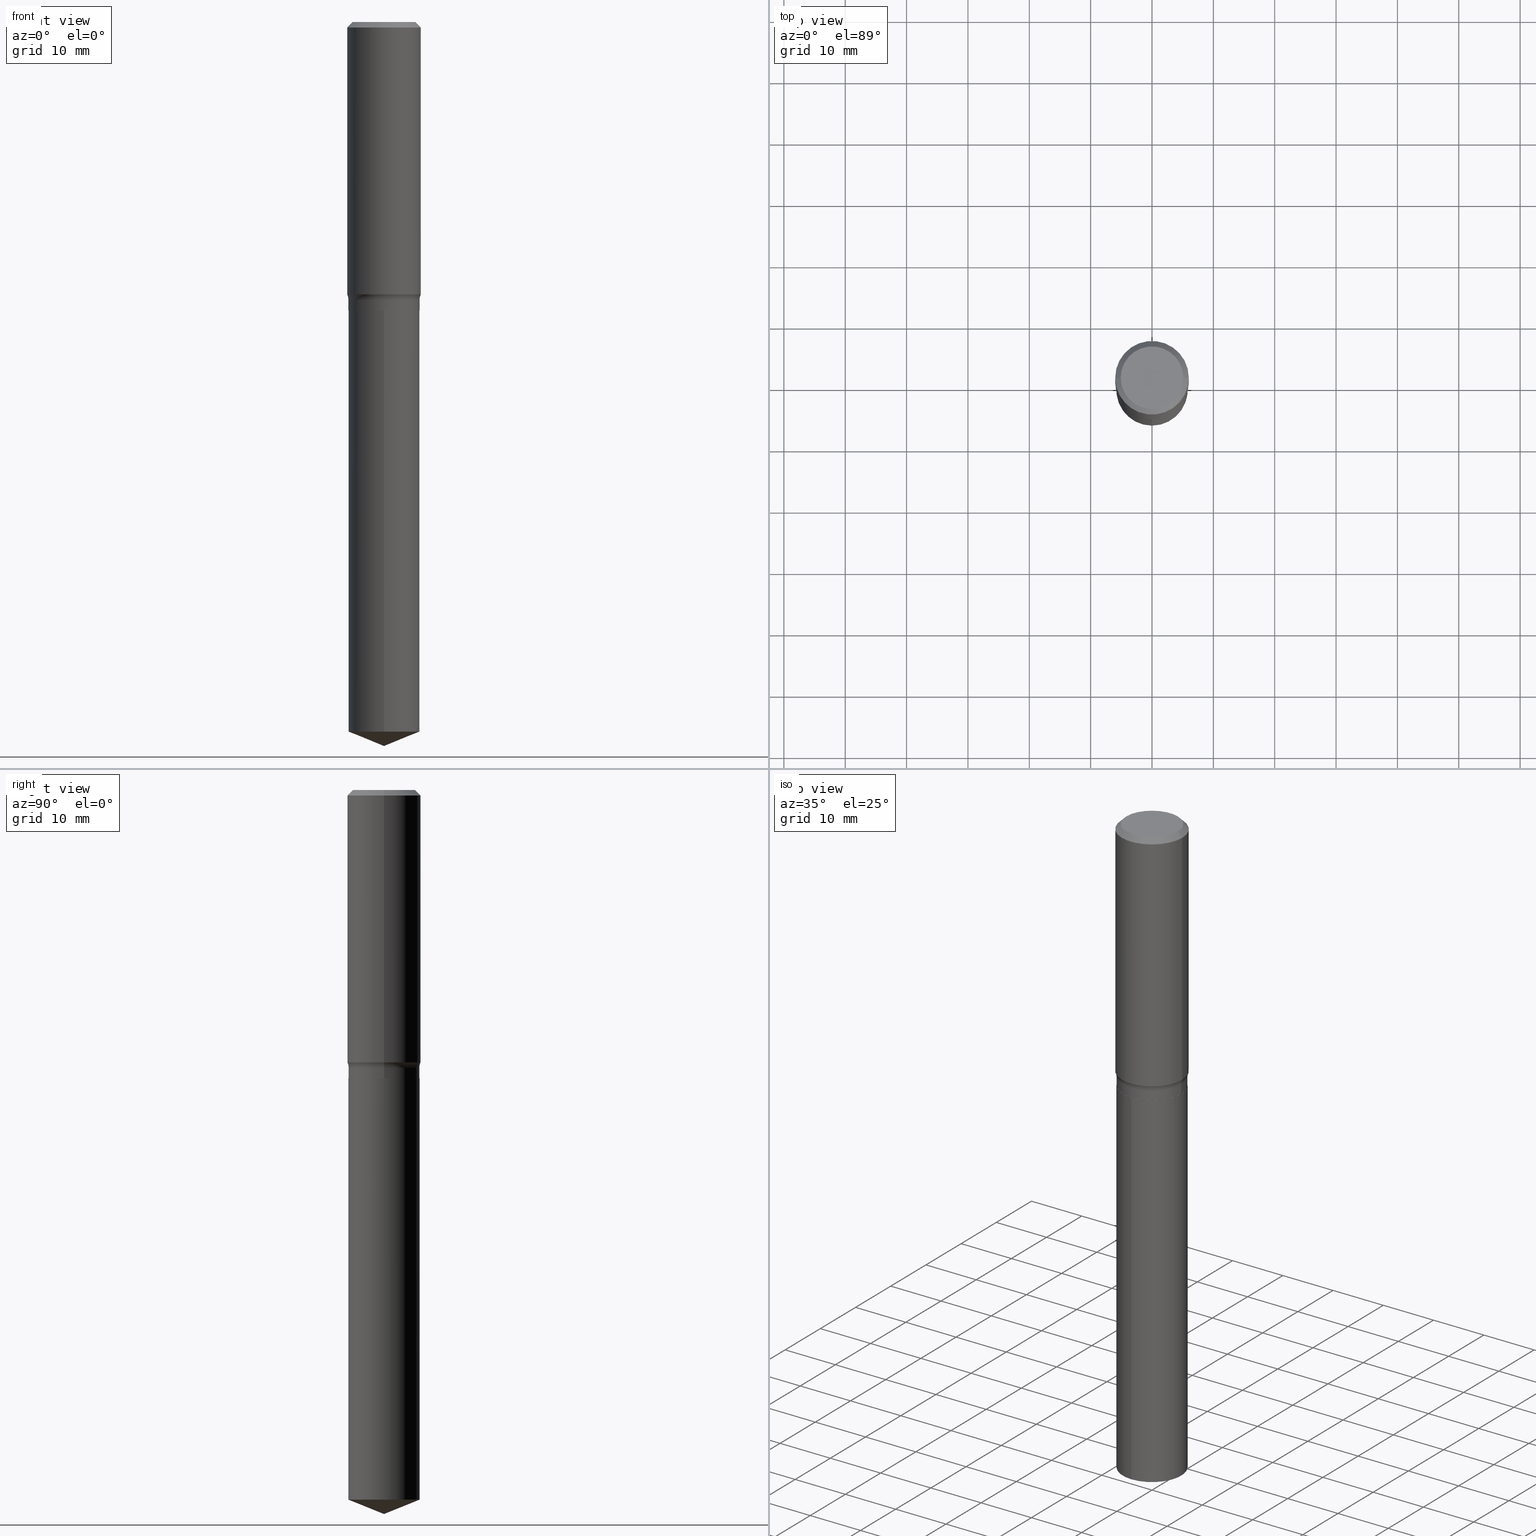
[diagram: canonical four-view strip — front | top / right | iso, engineering-drawing reading convention]
A machine part, canonical four-view strip (front | top / right | iso — engineering-drawing reading convention). The complete STEP part file that produces these views, byte-faithful:
ISO-10303-21;
HEADER;
FILE_DESCRIPTION (( 'STEP AP203' ),
    '1' );
FILE_NAME ('69309.STEP',
    '2024-04-19T17:47:00',
    ( '' ),
    ( '' ),
    'SwSTEP 2.0',
    'SolidWorks 2023',
    '' );
FILE_SCHEMA (( 'CONFIG_CONTROL_DESIGN' ));
ENDSEC;

DATA;
#1 = ORIENTED_EDGE ( 'NONE', *, *, #40, .T. ) ;
#2 = APPROVAL_ROLE ( '' ) ;
#3 = FACE_OUTER_BOUND ( 'NONE', #207, .T. ) ;
#4 = CARTESIAN_POINT ( 'NONE',  ( 4.525829119606832626E-29, -6.461684513797009689E-15, -1.850700000000000012 ) ) ;
#5 = EDGE_CURVE ( 'NONE', #185, #25, #203, .T. ) ;
#6 = CARTESIAN_POINT ( 'NONE',  ( -0.3063500000000000112, -4.045770371085188813E-15, -1.782200000000000450 ) ) ;
#7 = AXIS2_PLACEMENT_3D ( 'NONE', #463, #416, #264 ) ;
#8 = CARTESIAN_POINT ( 'NONE',  ( -5.008488096090115757E-47, 7.150793614331959538E-33, 2.048068690724057264E-18 ) ) ;
#9 = ADVANCED_FACE ( 'NONE', ( #237 ), #234, .T. ) ;
#10 = FACE_OUTER_BOUND ( 'NONE', #280, .T. ) ;
#11 = DIRECTION ( 'NONE',  ( -2.445463332132347352E-29, 3.491489177998303329E-15, 1.000000000000000000 ) ) ;
#12 = DIRECTION ( 'NONE',  ( -1.000000000000000000, 6.982962677686266711E-15, 0.000000000000000000 ) ) ;
#13 = CARTESIAN_POINT ( 'NONE',  ( -0.2361999999999999933, 1.525672600634282748E-15, -0.03543000000000021826 ) ) ;
#14 = CARTESIAN_POINT ( 'NONE',  ( 1.136164308041671340E-28, -1.622142970513121582E-14, -4.645999999999999908 ) ) ;
#15 = DIRECTION ( 'NONE',  ( -6.982962677686265922E-15, -1.000000000000000000, 2.392684907960817401E-15 ) ) ;
#16 = AXIS2_PLACEMENT_3D ( 'NONE', #425, #385, #225 ) ;
#17 = ORIENTED_EDGE ( 'NONE', *, *, #345, .F. ) ;
#18 = CARTESIAN_POINT ( 'NONE',  ( 0.000000000000000000, 0.000000000000000000, 0.000000000000000000 ) ) ;
#19 = DIRECTION ( 'NONE',  ( -6.982962677686265922E-15, -1.000000000000000000, 2.392684907960817401E-15 ) ) ;
#20 = ORIENTED_EDGE ( 'NONE', *, *, #69, .F. ) ;
#21 = VECTOR ( 'NONE', #323, 39.37007874015748143 ) ;
#22 = DIRECTION ( 'NONE',  ( 1.000000000000000000, -6.982962677686264344E-15, 0.000000000000000000 ) ) ;
#23 = AXIS2_PLACEMENT_3D ( 'NONE', #8, #120, #36 ) ;
#24 = EDGE_CURVE ( 'NONE', #392, #45, #399, .T. ) ;
#25 = VERTEX_POINT ( 'NONE', #202 ) ;
#26 = PERSON_AND_ORGANIZATION_ROLE ( 'design_owner' ) ;
#27 = EDGE_LOOP ( 'NONE', ( #82, #395, #220, #324 ) ) ;
#28 = CC_DESIGN_DATE_AND_TIME_ASSIGNMENT ( #101, #295, ( #124 ) ) ;
#29 = MECHANICAL_CONTEXT ( 'NONE', #156, 'mechanical' ) ;
#30 = DIRECTION ( 'NONE',  ( -0.7071067811866199593, 7.493145998870616062E-15, 0.7071067811864750752 ) ) ;
#31 = EDGE_LOOP ( 'NONE', ( #364, #403, #134, #34 ) ) ;
#32 = DATE_TIME_ROLE ( 'classification_date' ) ;
#33 = CARTESIAN_POINT ( 'NONE',  ( 8.664295980313993487E-31, -1.237031838352134079E-16, -0.03543000000000021826 ) ) ;
#34 = ORIENTED_EDGE ( 'NONE', *, *, #219, .F. ) ;
#35 = TOROIDAL_SURFACE ( 'NONE', #190, 0.3063500000000000112, 0.07799999999999999989 ) ;
#36 = DIRECTION ( 'NONE',  ( -1.000000000000000000, 6.982962677686265922E-15, -4.876176775795935793E-29 ) ) ;
#37 = APPROVAL ( #291, 'UNSPECIFIED' ) ;
#38 = DIRECTION ( 'NONE',  ( 7.105427357601001859E-15, 1.000000000000000000, -3.491481338843145583E-15 ) ) ;
#39 = DIRECTION ( 'NONE',  ( -2.445468806185136597E-29, 3.491481338843145583E-15, 1.000000000000000000 ) ) ;
#40 = EDGE_CURVE ( 'NONE', #450, #215, #394, .T. ) ;
#41 = AXIS2_PLACEMENT_3D ( 'NONE', #249, #318, #349 ) ;
#42 = AXIS2_PLACEMENT_3D ( 'NONE', #151, #184, #297 ) ;
#43 = CARTESIAN_POINT ( 'NONE',  ( 1.622524337108233918E-15, 0.2283499999999935581, -1.850700000000000900 ) ) ;
#44 = CARTESIAN_POINT ( 'NONE',  ( 0.000000000000000000, 0.000000000000000000, 0.000000000000000000 ) ) ;
#45 = VERTEX_POINT ( 'NONE', #126 ) ;
#46 = EDGE_CURVE ( 'NONE', #476, #106, #48, .T. ) ;
#47 = ORIENTED_EDGE ( 'NONE', *, *, #165, .T. ) ;
#48 = LINE ( 'NONE', #131, #257 ) ;
#49 = ORIENTED_EDGE ( 'NONE', *, *, #464, .T. ) ;
#50 = DIRECTION ( 'NONE',  ( 1.000000000000000000, -6.982962677686258033E-15, 0.000000000000000000 ) ) ;
#51 = EDGE_LOOP ( 'NONE', ( #354, #213, #47, #20 ) ) ;
#52 = EDGE_CURVE ( 'NONE', #450, #226, #169, .T. ) ;
#53 = CARTESIAN_POINT ( 'NONE',  ( 4.274918014208439573E-29, -6.103449953621363229E-15, -1.748097544076709253 ) ) ;
#54 = CONICAL_SURFACE ( 'NONE', #459, 0.2278499999999999970, 0.7853981633975507526 ) ;
#55 = DIRECTION ( 'NONE',  ( -2.445468806185136597E-29, 3.491481338843145583E-15, 1.000000000000000000 ) ) ;
#56 = CARTESIAN_POINT ( 'NONE',  ( 8.664295980313993487E-31, -1.237031838352134079E-16, -0.03543000000000021826 ) ) ;
#57 = EDGE_LOOP ( 'NONE', ( #336, #471, #376, #265 ) ) ;
#58 = CARTESIAN_POINT ( 'NONE',  ( -1.594559527449547323E-15, -0.2283500000000158459, -4.553740611330542976 ) ) ;
#59 = VERTEX_POINT ( 'NONE', #353 ) ;
#60 = PERSON_AND_ORGANIZATION ( #73, #379 ) ;
#61 = EDGE_CURVE ( 'NONE', #67, #185, #391, .T. ) ;
#62 = DIRECTION ( 'NONE',  ( -2.445463332132347352E-29, 3.491489177998303329E-15, 1.000000000000000000 ) ) ;
#63 = AXIS2_PLACEMENT_3D ( 'NONE', #33, #307, #229 ) ;
#64 = ORIENTED_EDGE ( 'NONE', *, *, #284, .T. ) ;
#65 = DIRECTION ( 'NONE',  ( -2.445468806185136877E-29, 3.491481338843145188E-15, 1.000000000000000000 ) ) ;
#66 = DIRECTION ( 'NONE',  ( -2.445468806185136597E-29, 3.491481338843145583E-15, 1.000000000000000000 ) ) ;
#67 = VERTEX_POINT ( 'NONE', #85 ) ;
#68 = ORIENTED_EDGE ( 'NONE', *, *, #250, .F. ) ;
#69 = EDGE_CURVE ( 'NONE', #447, #455, #310, .T. ) ;
#70 = APPROVAL_STATUS ( 'not_yet_approved' ) ;
#71 = DIRECTION ( 'NONE',  ( -6.982962677686265133E-15, -1.000000000000000000, 3.498761904101797187E-15 ) ) ;
#72 = PERSON_AND_ORGANIZATION ( #73, #379 ) ;
#73 = PERSON ( 'UNSPECIFIED', 'UNSPECIFIED', 'UNSPECIFIED', ('UNSPECIFIED'), ('UNSPECIFIED'), ('UNSPECIFIED') ) ;
#74 = CARTESIAN_POINT ( 'NONE',  ( 0.2362000000000002153, -7.752825738090861332E-15, -1.748097544076709253 ) ) ;
#75 = ADVANCED_FACE ( 'NONE', ( #282 ), #245, .F. ) ;
#76 = DIRECTION ( 'NONE',  ( -2.445463332132347352E-29, 3.491489177998303329E-15, 1.000000000000000000 ) ) ;
#77 = CONICAL_SURFACE ( 'NONE', #401, 97.44436430772927338, 1.186823891356147964 ) ;
#78 = DIRECTION ( 'NONE',  ( -2.445463332132347352E-29, 3.491489177998303329E-15, 1.000000000000000000 ) ) ;
#79 = CARTESIAN_POINT ( 'NONE',  ( 0.2278499999999999970, -8.052752559907825629E-15, -1.850700000000000012 ) ) ;
#80 = ADVANCED_FACE ( 'NONE', ( #206 ), #123, .T. ) ;
#81 = DIRECTION ( 'NONE',  ( -2.445468806185136597E-29, 3.491481338843145583E-15, 1.000000000000000000 ) ) ;
#82 = ORIENTED_EDGE ( 'NONE', *, *, #171, .F. ) ;
#83 = CIRCLE ( 'NONE', #102, 0.2361999999999999933 ) ;
#84 = AXIS2_PLACEMENT_3D ( 'NONE', #490, #66, #22 ) ;
#85 = CARTESIAN_POINT ( 'NONE',  ( 0.2278499999999999970, -8.052752559907825629E-15, -1.850700000000000012 ) ) ;
#86 = ORIENTED_EDGE ( 'NONE', *, *, #236, .F. ) ;
#87 = DIRECTION ( 'NONE',  ( -2.445468806185136597E-29, 3.491481338843145583E-15, 1.000000000000000000 ) ) ;
#88 = EDGE_LOOP ( 'NONE', ( #100, #94, #96, #187 ) ) ;
#89 = CARTESIAN_POINT ( 'NONE',  ( 4.525829119606832626E-29, -6.461684513797009689E-15, -1.850700000000000012 ) ) ;
#90 = AXIS2_PLACEMENT_3D ( 'NONE', #44, #468, #172 ) ;
#91 = DIRECTION ( 'NONE',  ( 1.000000000000000000, -6.982962677686265922E-15, 0.000000000000000000 ) ) ;
#92 = AXIS2_PLACEMENT_3D ( 'NONE', #341, #154, #477 ) ;
#93 = FACE_OUTER_BOUND ( 'NONE', #488, .T. ) ;
#94 = ORIENTED_EDGE ( 'NONE', *, *, #433, .F. ) ;
#95 = DIRECTION ( 'NONE',  ( -2.445468806185136597E-29, 3.491481338843145583E-15, 1.000000000000000000 ) ) ;
#96 = ORIENTED_EDGE ( 'NONE', *, *, #24, .T. ) ;
#97 = DIRECTION ( 'NONE',  ( -2.445463332132347352E-29, 3.491489177998303329E-15, 1.000000000000000000 ) ) ;
#98 = EDGE_CURVE ( 'NONE', #248, #45, #377, .T. ) ;
#99 = DIRECTION ( 'NONE',  ( 1.000000000000000000, -6.982962677686266711E-15, 4.876140833081945105E-29 ) ) ;
#100 = ORIENTED_EDGE ( 'NONE', *, *, #284, .F. ) ;
#101 = DATE_AND_TIME ( #227, #243 ) ;
#102 = AXIS2_PLACEMENT_3D ( 'NONE', #274, #87, #238 ) ;
#103 = CARTESIAN_POINT ( 'NONE',  ( 1.113601581988027933E-28, -1.589932155594752005E-14, -4.553740611330542976 ) ) ;
#104 = AXIS2_PLACEMENT_3D ( 'NONE', #53, #176, #91 ) ;
#105 = PRODUCT_DEFINITION_FORMATION_WITH_SPECIFIED_SOURCE ( 'ANY', '', #239, .NOT_KNOWN. ) ;
#106 = VERTEX_POINT ( 'NONE', #470 ) ;
#107 = PERSON_AND_ORGANIZATION_ROLE ( 'classification_officer' ) ;
#108 = CARTESIAN_POINT ( 'NONE',  ( 0.2283499999999999974, -1.594559527449658947E-15, 1.113474966753001934E-29 ) ) ;
#109 = EDGE_CURVE ( 'NONE', #409, #59, #315, .T. ) ;
#110 = ORIENTED_EDGE ( 'NONE', *, *, #345, .T. ) ;
#111 = DATE_AND_TIME ( #381, #139 ) ;
#112 = PLANE ( 'NONE',  #23 ) ;
#113 = DIRECTION ( 'NONE',  ( 2.445468806185136597E-29, -3.491481338843145583E-15, -1.000000000000000000 ) ) ;
#114 = CC_DESIGN_DATE_AND_TIME_ASSIGNMENT ( #374, #32, ( #180 ) ) ;
#115 = PERSON_AND_ORGANIZATION ( #73, #379 ) ;
#116 = AXIS2_PLACEMENT_3D ( 'NONE', #222, #400, #260 ) ;
#117 = PERSON_AND_ORGANIZATION_ROLE ( 'creator' ) ;
#118 = UNCERTAINTY_MEASURE_WITH_UNIT (LENGTH_MEASURE( 1.000000000000000082E-05 ), #221, 'distance_accuracy_value', 'NONE');
#119 = DIRECTION ( 'NONE',  ( -2.438088387897960049E-29, 3.491481338843145188E-15, 1.000000000000000000 ) ) ;
#120 = DIRECTION ( 'NONE',  ( 2.438088387897960049E-29, -3.491481338843145188E-15, -1.000000000000000000 ) ) ;
#121 = CLOSED_SHELL ( 'NONE', ( #413, #351, #230, #443, #75 ) ) ;
#122 = CIRCLE ( 'NONE', #378, 0.2283499999999999974 ) ;
#123 = CYLINDRICAL_SURFACE ( 'NONE', #90, 0.2283499999999999974 ) ;
#124 = PRODUCT_DEFINITION ( 'UNKNOWN', '', #105, #263 ) ;
#125 = DIRECTION ( 'NONE',  ( -2.445468806185136597E-29, 3.491481338843145583E-15, 1.000000000000000000 ) ) ;
#126 = CARTESIAN_POINT ( 'NONE',  ( 0.2283499999999999974, -7.817077569535915547E-15, -1.782200000000000450 ) ) ;
#127 = ORIENTED_EDGE ( 'NONE', *, *, #5, .T. ) ;
#128 = CIRCLE ( 'NONE', #7, 0.2362000000000002431 ) ;
#129 = EDGE_CURVE ( 'NONE', #106, #59, #83, .T. ) ;
#130 = LOCAL_TIME ( 13, 47, 0.000000000000000000, #489 ) ;
#131 = CARTESIAN_POINT ( 'NONE',  ( 0.2361999999999999933, -1.744152810908849053E-15, -0.03543000000000021826 ) ) ;
#132 = CYLINDRICAL_SURFACE ( 'NONE', #339, 0.2283499999999999974 ) ;
#133 = DIRECTION ( 'NONE',  ( 0.7071067811866199593, -2.468850131083015945E-15, 0.7071067811864750752 ) ) ;
#134 = ORIENTED_EDGE ( 'NONE', *, *, #129, .F. ) ;
#135 = FACE_OUTER_BOUND ( 'NONE', #51, .T. ) ;
#136 = DIRECTION ( 'NONE',  ( 1.000000000000000000, -6.982962677686265133E-15, 4.883557194083112901E-29 ) ) ;
#137 = ORIENTED_EDGE ( 'NONE', *, *, #61, .T. ) ;
#138 = AXIS2_PLACEMENT_3D ( 'NONE', #342, #344, #411 ) ;
#139 = LOCAL_TIME ( 13, 47, 0.000000000000000000, #452 ) ;
#140 = CARTESIAN_POINT ( 'NONE',  ( 0.2362000000000001321, -1.649375784469497117E-15, 1.151752954443000789E-29 ) ) ;
#141 = ORIENTED_EDGE ( 'NONE', *, *, #142, .F. ) ;
#142 = EDGE_CURVE ( 'NONE', #67, #290, #228, .T. ) ;
#143 = ORIENTED_EDGE ( 'NONE', *, *, #177, .T. ) ;
#144 =( LENGTH_UNIT ( ) NAMED_UNIT ( * ) SI_UNIT ( $, .METRE. ) );
#145 = DIRECTION ( 'NONE',  ( -2.445468806185136877E-29, 3.491481338843145188E-15, 1.000000000000000000 ) ) ;
#146 = ORIENTED_EDGE ( 'NONE', *, *, #250, .T. ) ;
#147 = DATE_AND_TIME ( #492, #461 ) ;
#148 = CLOSED_SHELL ( 'NONE', ( #373, #9, #472, #424, #277, #80, #267, #430, #149, #300, #393, #273 ) ) ;
#149 = ADVANCED_FACE ( 'NONE', ( #181 ), #161, .T. ) ;
#150 = CIRCLE ( 'NONE', #116, 0.2283499999999999974 ) ;
#151 = CARTESIAN_POINT ( 'NONE',  ( -8.491645117030201611E-28, 1.212387596451452399E-13, 34.72407874015748064 ) ) ;
#152 = ORIENTED_EDGE ( 'NONE', *, *, #255, .F. ) ;
#153 = APPROVAL_DATE_TIME ( #147, #37 ) ;
#154 = DIRECTION ( 'NONE',  ( -2.445468806185136597E-29, 3.491481338843145583E-15, 1.000000000000000000 ) ) ;
#155 = LINE ( 'NONE', #43, #209 ) ;
#156 = APPLICATION_CONTEXT ( 'configuration controlled 3d designs of mechanical parts and assemblies' ) ;
#157 = DIRECTION ( 'NONE',  ( 1.000000000000000000, -6.982962677686266711E-15, 0.000000000000000000 ) ) ;
#158 = PERSON_AND_ORGANIZATION ( #73, #379 ) ;
#159 = DIRECTION ( 'NONE',  ( -2.445468806185136597E-29, 3.491481338843145583E-15, 1.000000000000000000 ) ) ;
#160 = CARTESIAN_POINT ( 'NONE',  ( -0.2283499999999999974, 1.622524337108188756E-15, -1.123238827859707795E-29 ) ) ;
#161 = CONICAL_SURFACE ( 'NONE', #434, 0.2361999999999999933, 0.7853981633974452814 ) ;
#162 = CIRCLE ( 'NONE', #356, 0.2283499999999999974 ) ;
#163 = DIRECTION ( 'NONE',  ( 1.000000000000000000, -6.982962677686266711E-15, 4.876176775795935793E-29 ) ) ;
#164 = DIRECTION ( 'NONE',  ( -2.445463332132347352E-29, 3.491489177998303329E-15, 1.000000000000000000 ) ) ;
#165 = EDGE_CURVE ( 'NONE', #215, #455, #329, .T. ) ;
#166 = DIRECTION ( 'NONE',  ( -6.982962677686265922E-15, -1.000000000000000000, 3.589027361941226102E-15 ) ) ;
#167 = AXIS2_PLACEMENT_3D ( 'NONE', #313, #81, #437 ) ;
#168 = CC_DESIGN_SECURITY_CLASSIFICATION ( #180, ( #105 ) ) ;
#169 = LINE ( 'NONE', #14, #427 ) ;
#170 = EDGE_LOOP ( 'NONE', ( #49, #253 ) ) ;
#171 = EDGE_CURVE ( 'NONE', #476, #409, #216, .T. ) ;
#172 = DIRECTION ( 'NONE',  ( 1.000000000000000000, -6.982962677686266711E-15, 4.876176775795935793E-29 ) ) ;
#173 = ORIENTED_EDGE ( 'NONE', *, *, #98, .F. ) ;
#174 = AXIS2_PLACEMENT_3D ( 'NONE', #89, #11, #166 ) ;
#175 = AXIS2_PLACEMENT_3D ( 'NONE', #6, #38, #426 ) ;
#176 = DIRECTION ( 'NONE',  ( -2.445468806185136597E-29, 3.491481338843145583E-15, 1.000000000000000000 ) ) ;
#177 = EDGE_CURVE ( 'NONE', #185, #45, #408, .T. ) ;
#178 = ORIENTED_EDGE ( 'NONE', *, *, #142, .T. ) ;
#179 = CYLINDRICAL_SURFACE ( 'NONE', #451, 0.2362000000000001321 ) ;
#180 = SECURITY_CLASSIFICATION ( '', '', #334 ) ;
#181 = FACE_OUTER_BOUND ( 'NONE', #57, .T. ) ;
#182 = ORIENTED_EDGE ( 'NONE', *, *, #186, .T. ) ;
#183 = PERSON_AND_ORGANIZATION_ROLE ( 'design_supplier' ) ;
#184 = DIRECTION ( 'NONE',  ( -2.445463332132347352E-29, 3.491489177998303329E-15, 1.000000000000000000 ) ) ;
#185 = VERTEX_POINT ( 'NONE', #412 ) ;
#186 = EDGE_CURVE ( 'NONE', #290, #67, #346, .T. ) ;
#187 = ORIENTED_EDGE ( 'NONE', *, *, #255, .T. ) ;
#188 = APPLICATION_PROTOCOL_DEFINITION ( 'international standard', 'config_control_design', 1994, #469 ) ;
#189 = AXIS2_PLACEMENT_3D ( 'NONE', #240, #200, #50 ) ;
#190 = AXIS2_PLACEMENT_3D ( 'NONE', #479, #95, #136 ) ;
#191 = CARTESIAN_POINT ( 'NONE',  ( 4.525829119606832626E-29, -6.461684513797009689E-15, -1.850700000000000012 ) ) ;
#192 = CARTESIAN_POINT ( 'NONE',  ( 4.524606385203739825E-29, -6.459938773127588186E-15, -1.850200000000000067 ) ) ;
#193 = PERSON_AND_ORGANIZATION ( #73, #379 ) ;
#194 = FACE_OUTER_BOUND ( 'NONE', #442, .T. ) ;
#195 = FACE_OUTER_BOUND ( 'NONE', #170, .T. ) ;
#196 = TOROIDAL_SURFACE ( 'NONE', #92, 0.3063500000000000112, 0.07799999999999999989 ) ;
#197 = FACE_OUTER_BOUND ( 'NONE', #485, .T. ) ;
#198 = EDGE_CURVE ( 'NONE', #215, #226, #162, .T. ) ;
#199 = DIRECTION ( 'NONE',  ( 1.000000000000000000, -6.982962677686266711E-15, 4.876176775795936353E-29 ) ) ;
#200 = DIRECTION ( 'NONE',  ( -6.982962677686266711E-15, -1.000000000000000000, 3.491481338843145583E-15 ) ) ;
#201 = APPROVAL ( #70, 'UNSPECIFIED' ) ;
#202 = CARTESIAN_POINT ( 'NONE',  ( -0.2283499999999999974, -4.718704070498733637E-15, -1.850200000000000067 ) ) ;
#203 = CIRCLE ( 'NONE', #350, 0.2283499999999999974 ) ;
#204 = ORIENTED_EDGE ( 'NONE', *, *, #186, .F. ) ;
#205 = COORDINATED_UNIVERSAL_TIME_OFFSET ( 5, 0, .BEHIND. ) ;
#206 = FACE_OUTER_BOUND ( 'NONE', #298, .T. ) ;
#207 = EDGE_LOOP ( 'NONE', ( #178, #146, #397, #359 ) ) ;
#208 = ORIENTED_EDGE ( 'NONE', *, *, #478, .F. ) ;
#209 = VECTOR ( 'NONE', #270, 39.37007874015748143 ) ;
#210 = FACE_OUTER_BOUND ( 'NONE', #31, .T. ) ;
#211 = CC_DESIGN_PERSON_AND_ORGANIZATION_ASSIGNMENT ( #193, #26, ( #239 ) ) ;
#212 = CARTESIAN_POINT ( 'NONE',  ( -1.001697619218023151E-46, 1.430158722866391908E-32, 4.096137381448114529E-18 ) ) ;
#213 = ORIENTED_EDGE ( 'NONE', *, *, #449, .T. ) ;
#214 = DIRECTION ( 'NONE',  ( -2.445468806185136877E-29, 3.491481338843145188E-15, 1.000000000000000000 ) ) ;
#215 = VERTEX_POINT ( 'NONE', #58 ) ;
#216 = CIRCLE ( 'NONE', #366, 0.2007700000000000040 ) ;
#217 =( NAMED_UNIT ( * ) PLANE_ANGLE_UNIT ( ) SI_UNIT ( $, .RADIAN. ) );
#218 = CARTESIAN_POINT ( 'NONE',  ( 1.622524337108299591E-15, 0.2283499999999840935, -4.553740611330543864 ) ) ;
#219 = EDGE_CURVE ( 'NONE', #392, #106, #483, .T. ) ;
#220 = ORIENTED_EDGE ( 'NONE', *, *, #129, .T. ) ;
#221 =( CONVERSION_BASED_UNIT ( 'INCH', #415 ) LENGTH_UNIT ( ) NAMED_UNIT ( #232 ) );
#222 = CARTESIAN_POINT ( 'NONE',  ( 4.524606385203739825E-29, -6.459938773127588186E-15, -1.850200000000000067 ) ) ;
#223 = ORIENTED_EDGE ( 'NONE', *, *, #198, .F. ) ;
#224 = PERSON_AND_ORGANIZATION ( #73, #379 ) ;
#225 = DIRECTION ( 'NONE',  ( 1.000000000000000000, -6.982962677686264344E-15, 0.000000000000000000 ) ) ;
#226 = VERTEX_POINT ( 'NONE', #218 ) ;
#227 = CALENDAR_DATE ( 2024, 19, 4 ) ;
#228 = CIRCLE ( 'NONE', #482, 0.2278499999999999970 ) ;
#229 = DIRECTION ( 'NONE',  ( 1.000000000000000000, -6.982962677686266711E-15, 0.000000000000000000 ) ) ;
#230 = ADVANCED_FACE ( 'NONE', ( #369 ), #241, .T. ) ;
#231 = DIRECTION ( 'NONE',  ( 1.000000000000000000, -6.982962677686265922E-15, 4.876176775795935793E-29 ) ) ;
#232 = DIMENSIONAL_EXPONENTS ( 1.000000000000000000, 0.000000000000000000, 0.000000000000000000, 0.000000000000000000, 0.000000000000000000, 0.000000000000000000, 0.000000000000000000 ) ;
#233 = DIRECTION ( 'NONE',  ( -2.445468806185136877E-29, 3.491481338843145188E-15, 1.000000000000000000 ) ) ;
#234 = CONICAL_SURFACE ( 'NONE', #303, 0.2361999999999999933, 0.7853981633974452814 ) ;
#235 = VECTOR ( 'NONE', #30, 39.37007874015748143 ) ;
#236 = EDGE_CURVE ( 'NONE', #25, #185, #150, .T. ) ;
#237 = FACE_OUTER_BOUND ( 'NONE', #27, .T. ) ;
#238 = DIRECTION ( 'NONE',  ( 1.000000000000000000, -6.982962677686266711E-15, 0.000000000000000000 ) ) ;
#239 = PRODUCT ( '69309', '69309', '', ( #29 ) ) ;
#240 = CARTESIAN_POINT ( 'NONE',  ( 0.3063500000000000112, -8.361748658395443593E-15, -1.782200000000000450 ) ) ;
#241 = CONICAL_SURFACE ( 'NONE', #42, 97.44436430772927338, 1.186823891356147964 ) ;
#242 = ORIENTED_EDGE ( 'NONE', *, *, #219, .T. ) ;
#243 = LOCAL_TIME ( 13, 47, 0.000000000000000000, #448 ) ;
#244 = MANIFOLD_SOLID_BREP ( 'Body-Move/Copy2[1]', #121 ) ;
#245 = PLANE ( 'NONE',  #41 ) ;
#246 = ORIENTED_EDGE ( 'NONE', *, *, #405, .T. ) ;
#247 = PRODUCT_RELATED_PRODUCT_CATEGORY ( 'detail', '', ( #239 ) ) ;
#248 = VERTEX_POINT ( 'NONE', #454 ) ;
#249 = CARTESIAN_POINT ( 'NONE',  ( 4.525829119606832626E-29, -6.461684513797009689E-15, -1.850700000000000012 ) ) ;
#250 = EDGE_CURVE ( 'NONE', #290, #25, #288, .T. ) ;
#251 = APPROVAL_PERSON_ORGANIZATION ( #340, #325, #389 ) ;
#252 = ORIENTED_EDGE ( 'NONE', *, *, #165, .F. ) ;
#253 = ORIENTED_EDGE ( 'NONE', *, *, #171, .T. ) ;
#254 = CARTESIAN_POINT ( 'NONE',  ( 1.136162264108688643E-28, -1.622145872098012038E-14, -4.645999999999999908 ) ) ;
#255 = EDGE_CURVE ( 'NONE', #45, #248, #390, .T. ) ;
#256 = ORIENTED_EDGE ( 'NONE', *, *, #198, .T. ) ;
#257 = VECTOR ( 'NONE', #439, 39.37007874015748143 ) ;
#258 = COORDINATED_UNIVERSAL_TIME_OFFSET ( 5, 0, .BEHIND. ) ;
#259 = VECTOR ( 'NONE', #214, 39.37007874015748143 ) ;
#260 = DIRECTION ( 'NONE',  ( 1.000000000000000000, -6.982962677686266711E-15, 0.000000000000000000 ) ) ;
#261 = ORIENTED_EDGE ( 'NONE', *, *, #40, .F. ) ;
#262 = CALENDAR_DATE ( 2024, 19, 4 ) ;
#263 = DESIGN_CONTEXT ( 'detailed design', #469, 'design' ) ;
#264 = DIRECTION ( 'NONE',  ( 1.000000000000000000, -6.982962677686265922E-15, 0.000000000000000000 ) ) ;
#265 = ORIENTED_EDGE ( 'NONE', *, *, #388, .T. ) ;
#266 = LINE ( 'NONE', #160, #304 ) ;
#267 = ADVANCED_FACE ( 'NONE', ( #406 ), #35, .F. ) ;
#268 = VECTOR ( 'NONE', #145, 39.37007874015748143 ) ;
#269 = CARTESIAN_POINT ( 'NONE',  ( 4.525829119606832626E-29, -6.461684513797009689E-15, -1.850700000000000012 ) ) ;
#270 = DIRECTION ( 'NONE',  ( -2.445463332132347072E-29, 3.491489177998303329E-15, 1.000000000000000000 ) ) ;
#271 = SHAPE_DEFINITION_REPRESENTATION ( #292, #275 ) ;
#272 = CARTESIAN_POINT ( 'NONE',  ( -0.2362000000000002153, -4.425148011756005257E-15, -1.748097544076709253 ) ) ;
#273 = ADVANCED_FACE ( 'NONE', ( #93 ), #54, .T. ) ;
#274 = CARTESIAN_POINT ( 'NONE',  ( 8.664295980313993487E-31, -1.237031838352134079E-16, -0.03543000000000021826 ) ) ;
#275 = ADVANCED_BREP_SHAPE_REPRESENTATION ( '69309', ( #244, #402, #138 ), #484 ) ;
#276 = DIRECTION ( 'NONE',  ( 1.000000000000000000, -6.982962677686264344E-15, 0.000000000000000000 ) ) ;
#277 = ADVANCED_FACE ( 'NONE', ( #194 ), #375, .T. ) ;
#278 = VECTOR ( 'NONE', #133, 39.37007874015748143 ) ;
#279 = CIRCLE ( 'NONE', #63, 0.2361999999999999933 ) ;
#280 = EDGE_LOOP ( 'NONE', ( #256, #246, #17, #252 ) ) ;
#281 = CARTESIAN_POINT ( 'NONE',  ( 0.000000000000000000, 0.000000000000000000, 0.000000000000000000 ) ) ;
#282 = FACE_OUTER_BOUND ( 'NONE', #491, .T. ) ;
#283 = CARTESIAN_POINT ( 'NONE',  ( -1.594559527449613390E-15, -0.2283500000000064645, -1.850699999999999124 ) ) ;
#284 = EDGE_CURVE ( 'NONE', #321, #248, #428, .T. ) ;
#285 = DIRECTION ( 'NONE',  ( -2.445468806185136597E-29, 3.491481338843145583E-15, 1.000000000000000000 ) ) ;
#286 = ORIENTED_EDGE ( 'NONE', *, *, #449, .F. ) ;
#287 = CONICAL_SURFACE ( 'NONE', #16, 0.2278499999999999970, 0.7853981633975507526 ) ;
#288 = LINE ( 'NONE', #371, #235 ) ;
#289 = EDGE_LOOP ( 'NONE', ( #261, #338, #223 ) ) ;
#290 = VERTEX_POINT ( 'NONE', #380 ) ;
#291 = APPROVAL_STATUS ( 'not_yet_approved' ) ;
#292 = PRODUCT_DEFINITION_SHAPE ( 'NONE', 'NONE',  #124 ) ;
#293 = DIRECTION ( 'NONE',  ( -2.445468806185136597E-29, 3.491481338843145583E-15, 1.000000000000000000 ) ) ;
#294 = ORIENTED_EDGE ( 'NONE', *, *, #306, .T. ) ;
#295 = DATE_TIME_ROLE ( 'creation_date' ) ;
#296 = AXIS2_PLACEMENT_3D ( 'NONE', #269, #164, #382 ) ;
#297 = DIRECTION ( 'NONE',  ( -6.982962677686265133E-15, -1.000000000000000000, 3.498761904101797187E-15 ) ) ;
#298 = EDGE_LOOP ( 'NONE', ( #372, #370, #143, #173 ) ) ;
#299 = APPROVAL_DATE_TIME ( #111, #201 ) ;
#300 = ADVANCED_FACE ( 'NONE', ( #195 ), #112, .F. ) ;
#301 = FACE_OUTER_BOUND ( 'NONE', #289, .T. ) ;
#302 = APPROVAL_ROLE ( '' ) ;
#303 = AXIS2_PLACEMENT_3D ( 'NONE', #386, #113, #12 ) ;
#304 = VECTOR ( 'NONE', #233, 39.37007874015748143 ) ;
#305 = DIRECTION ( 'NONE',  ( -6.982962677686265922E-15, -1.000000000000000000, 3.589027361941226102E-15 ) ) ;
#306 = EDGE_CURVE ( 'NONE', #25, #248, #266, .T. ) ;
#307 = DIRECTION ( 'NONE',  ( -2.445468806185136597E-29, 3.491481338843145583E-15, 1.000000000000000000 ) ) ;
#308 = CC_DESIGN_PERSON_AND_ORGANIZATION_ASSIGNMENT ( #72, #456, ( #124 ) ) ;
#309 = FACE_OUTER_BOUND ( 'NONE', #327, .T. ) ;
#310 = CIRCLE ( 'NONE', #174, 0.2283499999999999974 ) ;
#311 = LINE ( 'NONE', #467, #441 ) ;
#312 = AXIS2_PLACEMENT_3D ( 'NONE', #191, #76, #305 ) ;
#313 = CARTESIAN_POINT ( 'NONE',  ( 4.358314506383151895E-29, -6.222518042086255812E-15, -1.782200000000000450 ) ) ;
#314 = APPROVAL_PERSON_ORGANIZATION ( #158, #37, #2 ) ;
#315 = LINE ( 'NONE', #13, #319 ) ;
#316 = DIRECTION ( 'NONE',  ( 1.000000000000000000, -6.982962677686266711E-15, 4.876176775795936353E-29 ) ) ;
#317 = CARTESIAN_POINT ( 'NONE',  ( 1.136162264108688643E-28, -1.622145872098012038E-14, -4.645999999999999908 ) ) ;
#318 = DIRECTION ( 'NONE',  ( 2.445463332132347072E-29, -3.491489177998303329E-15, -1.000000000000000000 ) ) ;
#319 = VECTOR ( 'NONE', #474, 39.37007874015748143 ) ;
#320 = AXIS2_PLACEMENT_3D ( 'NONE', #281, #159, #316 ) ;
#321 = VERTEX_POINT ( 'NONE', #272 ) ;
#322 = CC_DESIGN_APPROVAL ( #37, ( #124 ) ) ;
#323 = DIRECTION ( 'NONE',  ( -6.474490251793185729E-15, -0.9271838545667875353, 0.3746065934159116817 ) ) ;
#324 = ORIENTED_EDGE ( 'NONE', *, *, #109, .F. ) ;
#325 = APPROVAL ( #419, 'UNSPECIFIED' ) ;
#326 = CARTESIAN_POINT ( 'NONE',  ( 4.525829119606832626E-29, -6.461684513797009689E-15, -1.850700000000000012 ) ) ;
#327 = EDGE_LOOP ( 'NONE', ( #480, #64, #432, #333 ) ) ;
#328 = CARTESIAN_POINT ( 'NONE',  ( 4.525829119606832626E-29, -6.461684513797009689E-15, -1.850700000000000012 ) ) ;
#329 = LINE ( 'NONE', #332, #365 ) ;
#330 = ORIENTED_EDGE ( 'NONE', *, *, #177, .F. ) ;
#331 = CIRCLE ( 'NONE', #384, 0.2007700000000000040 ) ;
#332 = CARTESIAN_POINT ( 'NONE',  ( -1.594559527449613390E-15, -0.2283500000000064645, -1.850699999999999124 ) ) ;
#333 = ORIENTED_EDGE ( 'NONE', *, *, #24, .F. ) ;
#334 = SECURITY_CLASSIFICATION_LEVEL ( 'unclassified' ) ;
#335 = DIRECTION ( 'NONE',  ( -1.000000000000000000, 6.982962677686266711E-15, 0.000000000000000000 ) ) ;
#336 = ORIENTED_EDGE ( 'NONE', *, *, #46, .F. ) ;
#337 = CARTESIAN_POINT ( 'NONE',  ( 4.358314506383151895E-29, -6.222518042086255812E-15, -1.782200000000000450 ) ) ;
#338 = ORIENTED_EDGE ( 'NONE', *, *, #52, .T. ) ;
#339 = AXIS2_PLACEMENT_3D ( 'NONE', #328, #78, #404 ) ;
#340 = PERSON_AND_ORGANIZATION ( #73, #379 ) ;
#341 = CARTESIAN_POINT ( 'NONE',  ( 4.358314506383151895E-29, -6.222518042086255812E-15, -1.782200000000000450 ) ) ;
#342 = CARTESIAN_POINT ( 'NONE',  ( 0.000000000000000000, 0.000000000000000000, 0.000000000000000000 ) ) ;
#343 = CARTESIAN_POINT ( 'NONE',  ( -8.491645117030201611E-28, 1.212387596451452399E-13, 34.72407874015748064 ) ) ;
#344 = DIRECTION ( 'NONE',  ( 0.000000000000000000, 0.000000000000000000, 1.000000000000000000 ) ) ;
#345 = EDGE_CURVE ( 'NONE', #455, #447, #435, .T. ) ;
#346 = CIRCLE ( 'NONE', #84, 0.2278499999999999970 ) ;
#347 = CARTESIAN_POINT ( 'NONE',  ( -0.2007700000000000040, 1.463821008716677338E-15, 4.096137381438094301E-18 ) ) ;
#348 = CARTESIAN_POINT ( 'NONE',  ( 0.2007700000000000040, -1.560767496960719672E-15, 4.096137381458473721E-18 ) ) ;
#349 = DIRECTION ( 'NONE',  ( 6.982962677686265922E-15, 1.000000000000000000, -3.491489177998303329E-15 ) ) ;
#350 = AXIS2_PLACEMENT_3D ( 'NONE', #192, #465, #157 ) ;
#351 = ADVANCED_FACE ( 'NONE', ( #301 ), #77, .T. ) ;
#352 = CARTESIAN_POINT ( 'NONE',  ( 4.525829119606832626E-29, -6.461684513797009689E-15, -1.850700000000000012 ) ) ;
#353 = CARTESIAN_POINT ( 'NONE',  ( -0.2361999999999999933, -1.435274626862930827E-15, -0.03543000000000021826 ) ) ;
#354 = ORIENTED_EDGE ( 'NONE', *, *, #405, .F. ) ;
#355 = CARTESIAN_POINT ( 'NONE',  ( 1.622524337108300380E-15, 0.2283499999999935581, -1.850700000000000900 ) ) ;
#356 = AXIS2_PLACEMENT_3D ( 'NONE', #103, #62, #19 ) ;
#357 = AXIS2_PLACEMENT_3D ( 'NONE', #457, #39, #163 ) ;
#358 = DIRECTION ( 'NONE',  ( 1.000000000000000000, -6.982962677686266711E-15, 0.000000000000000000 ) ) ;
#359 = ORIENTED_EDGE ( 'NONE', *, *, #61, .F. ) ;
#360 = DIRECTION ( 'NONE',  ( 2.445468806185136597E-29, -3.491481338843145583E-15, -1.000000000000000000 ) ) ;
#361 = ORIENTED_EDGE ( 'NONE', *, *, #52, .F. ) ;
#362 = EDGE_CURVE ( 'NONE', #321, #392, #128, .T. ) ;
#363 = DIRECTION ( 'NONE',  ( 1.000000000000000000, -6.982962677686264344E-15, 0.000000000000000000 ) ) ;
#364 = ORIENTED_EDGE ( 'NONE', *, *, #433, .T. ) ;
#365 = VECTOR ( 'NONE', #487, 39.37007874015748143 ) ;
#366 = AXIS2_PLACEMENT_3D ( 'NONE', #212, #293, #99 ) ;
#367 = LOCAL_TIME ( 13, 47, 0.000000000000000000, #205 ) ;
#368 =( NAMED_UNIT ( * ) SI_UNIT ( $, .STERADIAN. ) SOLID_ANGLE_UNIT ( ) );
#369 = FACE_OUTER_BOUND ( 'NONE', #417, .T. ) ;
#370 = ORIENTED_EDGE ( 'NONE', *, *, #236, .T. ) ;
#371 = CARTESIAN_POINT ( 'NONE',  ( -0.2278499999999999970, -4.842712890367621437E-15, -1.850700000000000012 ) ) ;
#372 = ORIENTED_EDGE ( 'NONE', *, *, #306, .F. ) ;
#373 = ADVANCED_FACE ( 'NONE', ( #3 ), #287, .T. ) ;
#374 = DATE_AND_TIME ( #262, #130 ) ;
#375 = CYLINDRICAL_SURFACE ( 'NONE', #357, 0.2283499999999999974 ) ;
#376 = ORIENTED_EDGE ( 'NONE', *, *, #109, .T. ) ;
#377 = CIRCLE ( 'NONE', #167, 0.2283499999999999974 ) ;
#378 = AXIS2_PLACEMENT_3D ( 'NONE', #481, #97, #15 ) ;
#379 = ORGANIZATION ( 'UNSPECIFIED', 'UNSPECIFIED', '' ) ;
#380 = CARTESIAN_POINT ( 'NONE',  ( -0.2278499999999999970, -4.840063663193510236E-15, -1.850700000000000012 ) ) ;
#381 = CALENDAR_DATE ( 2024, 19, 4 ) ;
#382 = DIRECTION ( 'NONE',  ( -6.982962677686265922E-15, -1.000000000000000000, 3.589027361941226102E-15 ) ) ;
#383 = CALENDAR_DATE ( 2024, 19, 4 ) ;
#384 = AXIS2_PLACEMENT_3D ( 'NONE', #438, #398, #444 ) ;
#385 = DIRECTION ( 'NONE',  ( -2.445468806185136597E-29, 3.491481338843145583E-15, 1.000000000000000000 ) ) ;
#386 = CARTESIAN_POINT ( 'NONE',  ( 8.664295980313993487E-31, -1.237031838352134079E-16, -0.03543000000000021826 ) ) ;
#387 = DATE_AND_TIME ( #383, #367 ) ;
#388 = EDGE_CURVE ( 'NONE', #59, #106, #279, .T. ) ;
#389 = APPROVAL_ROLE ( '' ) ;
#390 = CIRCLE ( 'NONE', #466, 0.2283499999999999974 ) ;
#391 = LINE ( 'NONE', #79, #278 ) ;
#392 = VERTEX_POINT ( 'NONE', #74 ) ;
#393 = ADVANCED_FACE ( 'NONE', ( #197 ), #420, .F. ) ;
#394 = LINE ( 'NONE', #317, #21 ) ;
#395 = ORIENTED_EDGE ( 'NONE', *, *, #46, .T. ) ;
#396 = DIRECTION ( 'NONE',  ( 6.588037525764799179E-15, 0.9271838545667900888, 0.3746065934159051869 ) ) ;
#397 = ORIENTED_EDGE ( 'NONE', *, *, #5, .F. ) ;
#398 = DIRECTION ( 'NONE',  ( -2.445468806185136597E-29, 3.491481338843145583E-15, 1.000000000000000000 ) ) ;
#399 = CIRCLE ( 'NONE', #189, 0.07799999999999999989 ) ;
#400 = DIRECTION ( 'NONE',  ( -2.445468806185136597E-29, 3.491481338843145583E-15, 1.000000000000000000 ) ) ;
#401 = AXIS2_PLACEMENT_3D ( 'NONE', #343, #462, #71 ) ;
#402 = MANIFOLD_SOLID_BREP ( 'Body-Move/Copy2[2]', #148 ) ;
#403 = ORIENTED_EDGE ( 'NONE', *, *, #478, .T. ) ;
#404 = DIRECTION ( 'NONE',  ( -6.982962677686265922E-15, -1.000000000000000000, 3.589027361941226102E-15 ) ) ;
#405 = EDGE_CURVE ( 'NONE', #226, #447, #155, .T. ) ;
#406 = FACE_OUTER_BOUND ( 'NONE', #88, .T. ) ;
#407 = ORIENTED_EDGE ( 'NONE', *, *, #69, .T. ) ;
#408 = LINE ( 'NONE', #108, #268 ) ;
#409 = VERTEX_POINT ( 'NONE', #347 ) ;
#410 = AXIS2_PLACEMENT_3D ( 'NONE', #4, #119, #231 ) ;
#411 = DIRECTION ( 'NONE',  ( 1.000000000000000000, 0.000000000000000000, 0.000000000000000000 ) ) ;
#412 = CARTESIAN_POINT ( 'NONE',  ( 0.2283499999999999974, -8.054498300577247921E-15, -1.850200000000000067 ) ) ;
#413 = ADVANCED_FACE ( 'NONE', ( #10 ), #423, .T. ) ;
#414 = ORIENTED_EDGE ( 'NONE', *, *, #388, .F. ) ;
#415 = LENGTH_MEASURE_WITH_UNIT ( LENGTH_MEASURE( 0.02539999999999999897 ), #144 );
#416 = DIRECTION ( 'NONE',  ( -2.445468806185136597E-29, 3.491481338843145583E-15, 1.000000000000000000 ) ) ;
#417 = EDGE_LOOP ( 'NONE', ( #361, #1, #286 ) ) ;
#418 = CC_DESIGN_PERSON_AND_ORGANIZATION_ASSIGNMENT ( #460, #117, ( #105 ) ) ;
#419 = APPROVAL_STATUS ( 'not_yet_approved' ) ;
#420 = PLANE ( 'NONE',  #410 ) ;
#421 = APPLICATION_PROTOCOL_DEFINITION ( 'international standard', 'config_control_design', 1994, #156 ) ;
#422 = CC_DESIGN_APPROVAL ( #201, ( #105 ) ) ;
#423 = CYLINDRICAL_SURFACE ( 'NONE', #296, 0.2283499999999999974 ) ;
#424 = ADVANCED_FACE ( 'NONE', ( #309 ), #196, .F. ) ;
#425 = CARTESIAN_POINT ( 'NONE',  ( 4.525829119606832626E-29, -6.461684513797009689E-15, -1.850700000000000012 ) ) ;
#426 = DIRECTION ( 'NONE',  ( -1.000000000000000000, 7.105427357600997914E-15, 0.000000000000000000 ) ) ;
#427 = VECTOR ( 'NONE', #396, 39.37007874015748854 ) ;
#428 = CIRCLE ( 'NONE', #175, 0.07799999999999999989 ) ;
#429 = CC_DESIGN_APPROVAL ( #325, ( #180 ) ) ;
#430 = ADVANCED_FACE ( 'NONE', ( #458 ), #486, .T. ) ;
#431 = APPROVAL_DATE_TIME ( #387, #325 ) ;
#432 = ORIENTED_EDGE ( 'NONE', *, *, #98, .T. ) ;
#433 = EDGE_CURVE ( 'NONE', #392, #321, #473, .T. ) ;
#434 = AXIS2_PLACEMENT_3D ( 'NONE', #56, #360, #335 ) ;
#435 = CIRCLE ( 'NONE', #312, 0.2283499999999999974 ) ;
#436 = ORIENTED_EDGE ( 'NONE', *, *, #362, .T. ) ;
#437 = DIRECTION ( 'NONE',  ( 1.000000000000000000, -6.982962677686266711E-15, 0.000000000000000000 ) ) ;
#438 = CARTESIAN_POINT ( 'NONE',  ( -1.001697619218023151E-46, 1.430158722866391908E-32, 4.096137381448114529E-18 ) ) ;
#439 = DIRECTION ( 'NONE',  ( 0.7071067811865453523, -7.319954787623248157E-15, -0.7071067811865496822 ) ) ;
#440 = DIRECTION ( 'NONE',  ( -2.445468806185136597E-29, 3.491481338843145583E-15, 1.000000000000000000 ) ) ;
#441 = VECTOR ( 'NONE', #65, 39.37007874015748143 ) ;
#442 = EDGE_LOOP ( 'NONE', ( #127, #294, #152, #330 ) ) ;
#443 = ADVANCED_FACE ( 'NONE', ( #135 ), #132, .T. ) ;
#444 = DIRECTION ( 'NONE',  ( 1.000000000000000000, -6.982962677686266711E-15, 4.876140833081945105E-29 ) ) ;
#445 = EDGE_LOOP ( 'NONE', ( #208, #436, #242, #414 ) ) ;
#446 = CC_DESIGN_PERSON_AND_ORGANIZATION_ASSIGNMENT ( #60, #183, ( #105 ) ) ;
#447 = VERTEX_POINT ( 'NONE', #355 ) ;
#448 = COORDINATED_UNIVERSAL_TIME_OFFSET ( 5, 0, .BEHIND. ) ;
#449 = EDGE_CURVE ( 'NONE', #226, #215, #122, .T. ) ;
#450 = VERTEX_POINT ( 'NONE', #254 ) ;
#451 = AXIS2_PLACEMENT_3D ( 'NONE', #18, #440, #199 ) ;
#452 = COORDINATED_UNIVERSAL_TIME_OFFSET ( 5, 0, .BEHIND. ) ;
#453 = CC_DESIGN_PERSON_AND_ORGANIZATION_ASSIGNMENT ( #224, #107, ( #180 ) ) ;
#454 = CARTESIAN_POINT ( 'NONE',  ( -0.2283499999999999974, -4.718704070498733637E-15, -1.782200000000000450 ) ) ;
#455 = VERTEX_POINT ( 'NONE', #283 ) ;
#456 = PERSON_AND_ORGANIZATION_ROLE ( 'creator' ) ;
#457 = CARTESIAN_POINT ( 'NONE',  ( 0.000000000000000000, 0.000000000000000000, 0.000000000000000000 ) ) ;
#458 = FACE_OUTER_BOUND ( 'NONE', #445, .T. ) ;
#459 = AXIS2_PLACEMENT_3D ( 'NONE', #326, #285, #363 ) ;
#460 = PERSON_AND_ORGANIZATION ( #73, #379 ) ;
#461 = LOCAL_TIME ( 13, 47, 0.000000000000000000, #258 ) ;
#462 = DIRECTION ( 'NONE',  ( -2.445463332132347352E-29, 3.491489177998303329E-15, 1.000000000000000000 ) ) ;
#463 = CARTESIAN_POINT ( 'NONE',  ( 4.274918014208439573E-29, -6.103449953621363229E-15, -1.748097544076709253 ) ) ;
#464 = EDGE_CURVE ( 'NONE', #409, #476, #331, .T. ) ;
#465 = DIRECTION ( 'NONE',  ( -2.445468806185136597E-29, 3.491481338843145583E-15, 1.000000000000000000 ) ) ;
#466 = AXIS2_PLACEMENT_3D ( 'NONE', #337, #55, #358 ) ;
#467 = CARTESIAN_POINT ( 'NONE',  ( -0.2362000000000001321, 1.678301941865357577E-15, -1.161852468318209457E-29 ) ) ;
#468 = DIRECTION ( 'NONE',  ( -2.445468806185136597E-29, 3.491481338843145583E-15, 1.000000000000000000 ) ) ;
#469 = APPLICATION_CONTEXT ( 'configuration controlled 3d designs of mechanical parts and assemblies' ) ;
#470 = CARTESIAN_POINT ( 'NONE',  ( 0.2361999999999999933, -1.773078968304709514E-15, -0.03543000000000021826 ) ) ;
#471 = ORIENTED_EDGE ( 'NONE', *, *, #464, .F. ) ;
#472 = ADVANCED_FACE ( 'NONE', ( #210 ), #179, .T. ) ;
#473 = CIRCLE ( 'NONE', #104, 0.2362000000000002431 ) ;
#474 = DIRECTION ( 'NONE',  ( -0.7071067811865453523, 2.468850131082234184E-15, -0.7071067811865496822 ) ) ;
#475 = APPROVAL_PERSON_ORGANIZATION ( #115, #201, #302 ) ;
#476 = VERTEX_POINT ( 'NONE', #348 ) ;
#477 = DIRECTION ( 'NONE',  ( 1.000000000000000000, -6.982962677686265133E-15, 4.883557194083112901E-29 ) ) ;
#478 = EDGE_CURVE ( 'NONE', #321, #59, #311, .T. ) ;
#479 = CARTESIAN_POINT ( 'NONE',  ( 4.358314506383151895E-29, -6.222518042086255812E-15, -1.782200000000000450 ) ) ;
#480 = ORIENTED_EDGE ( 'NONE', *, *, #362, .F. ) ;
#481 = CARTESIAN_POINT ( 'NONE',  ( 1.113601581988027933E-28, -1.589932155594752005E-14, -4.553740611330542976 ) ) ;
#482 = AXIS2_PLACEMENT_3D ( 'NONE', #352, #125, #276 ) ;
#483 = LINE ( 'NONE', #140, #259 ) ;
#484 =( GEOMETRIC_REPRESENTATION_CONTEXT ( 3 ) GLOBAL_UNCERTAINTY_ASSIGNED_CONTEXT ( ( #118 ) ) GLOBAL_UNIT_ASSIGNED_CONTEXT ( ( #221, #217, #368 ) ) REPRESENTATION_CONTEXT ( 'NONE', 'WORKASPACE' ) );
#485 = EDGE_LOOP ( 'NONE', ( #141, #204 ) ) ;
#486 = CYLINDRICAL_SURFACE ( 'NONE', #320, 0.2362000000000001321 ) ;
#487 = DIRECTION ( 'NONE',  ( -2.445463332132347072E-29, 3.491489177998303329E-15, 1.000000000000000000 ) ) ;
#488 = EDGE_LOOP ( 'NONE', ( #68, #182, #137, #86 ) ) ;
#489 = COORDINATED_UNIVERSAL_TIME_OFFSET ( 5, 0, .BEHIND. ) ;
#490 = CARTESIAN_POINT ( 'NONE',  ( 4.525829119606832626E-29, -6.461684513797009689E-15, -1.850700000000000012 ) ) ;
#491 = EDGE_LOOP ( 'NONE', ( #110, #407 ) ) ;
#492 = CALENDAR_DATE ( 2024, 19, 4 ) ;
ENDSEC;
END-ISO-10303-21;
